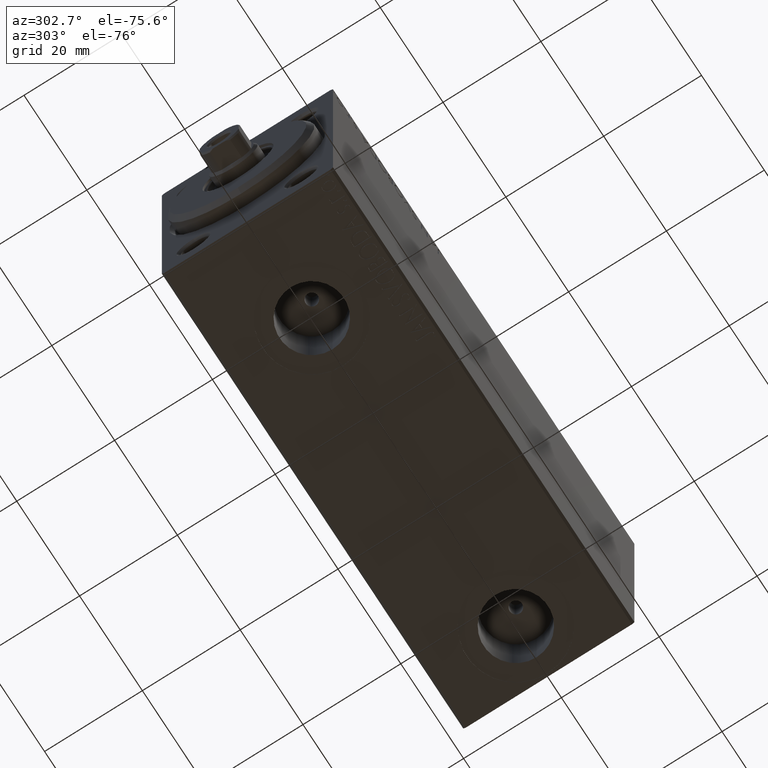
[diagram: clean part render]
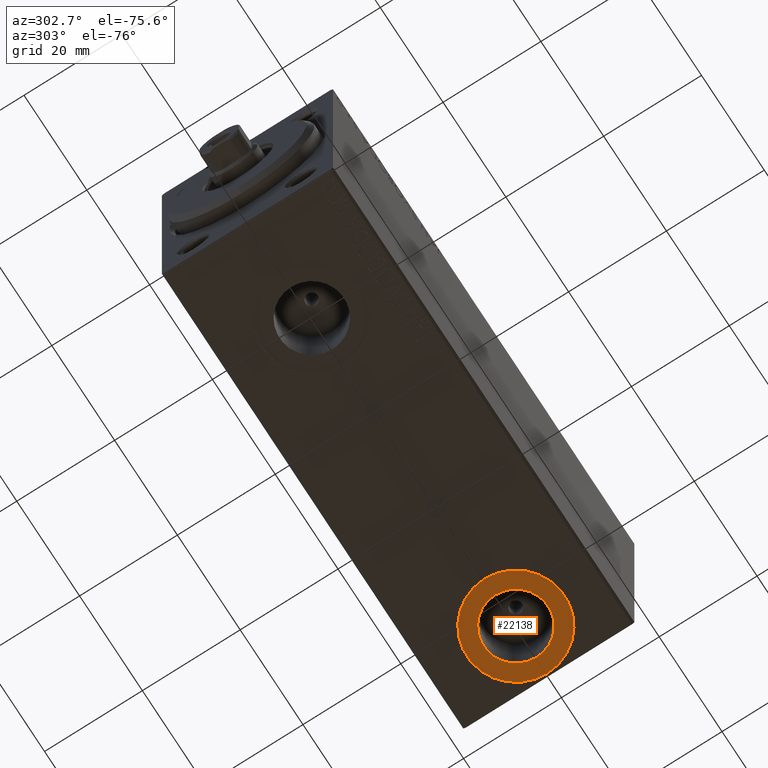
[diagram: same view with one face highlighted and labeled with its STEP entity id]
A machine part, auxiliary view. The second image highlights one B-rep face of the part: STEP entity #22138.
In plain terms, the highlighted planar face has unit normal (0, 0, -1).
Its self-contained STEP definition (entity closure, byte-faithful):
#314 = EDGE_CURVE ( 'NONE', #8941, #16981, #14906, .T. ) ;
#1851 = CARTESIAN_POINT ( 'NONE',  ( 92.08000000000002672, -1.232851729569972347E-14, -27.40000000000000924 ) ) ;
#1897 = DIRECTION ( 'NONE',  ( 0.000000000000000000, 0.000000000000000000, -1.000000000000000000 ) ) ;
#2788 = ORIENTED_EDGE ( 'NONE', *, *, #3177, .F. ) ;
#3000 = PLANE ( 'NONE',  #44772 ) ;
#3151 = AXIS2_PLACEMENT_3D ( 'NONE', #41421, #26704, #17018 ) ;
#3177 = EDGE_CURVE ( 'NONE', #16799, #27936, #15704, .T. ) ;
#3237 = FACE_BOUND ( 'NONE', #28204, .T. ) ;
#6356 = CARTESIAN_POINT ( 'NONE',  ( 75.50000000000002842, -1.313433488953868251E-14, -27.40000000000000924 ) ) ;
#7001 = CIRCLE ( 'NONE', #20208, 6.580000000000002736 ) ;
#8941 = VERTEX_POINT ( 'NONE', #17012 ) ;
#10587 = FACE_OUTER_BOUND ( 'NONE', #24576, .T. ) ;
#12698 = DIRECTION ( 'NONE',  ( -1.000000000000000000, 0.000000000000000000, 0.000000000000000000 ) ) ;
#13132 = ORIENTED_EDGE ( 'NONE', *, *, #314, .T. ) ;
#13813 = DIRECTION ( 'NONE',  ( 0.000000000000000000, 0.000000000000000000, -1.000000000000000000 ) ) ;
#14906 = CIRCLE ( 'NONE', #3151, 9.999999999999994671 ) ;
#15704 = CIRCLE ( 'NONE', #21609, 6.580000000000002736 ) ;
#16408 = ORIENTED_EDGE ( 'NONE', *, *, #40456, .T. ) ;
#16513 = CIRCLE ( 'NONE', #28270, 9.999999999999994671 ) ;
#16638 = DIRECTION ( 'NONE',  ( -1.000000000000000000, 0.000000000000000000, 0.000000000000000000 ) ) ;
#16799 = VERTEX_POINT ( 'NONE', #33079 ) ;
#16981 = VERTEX_POINT ( 'NONE', #6356 ) ;
#17012 = CARTESIAN_POINT ( 'NONE',  ( 95.50000000000001421, -1.190968809039132945E-14, -27.40000000000000924 ) ) ;
#17018 = DIRECTION ( 'NONE',  ( -1.000000000000000000, 0.000000000000000000, 0.000000000000000000 ) ) ;
#19853 = CARTESIAN_POINT ( 'NONE',  ( 85.50000000000001421, -1.313433488953868251E-14, -27.40000000000000924 ) ) ;
#20208 = AXIS2_PLACEMENT_3D ( 'NONE', #32781, #35781, #39454 ) ;
#21609 = AXIS2_PLACEMENT_3D ( 'NONE', #38497, #41268, #16638 ) ;
#22138 = ADVANCED_FACE ( 'NONE', ( #3237, #10587 ), #3000, .T. ) ;
#24576 = EDGE_LOOP ( 'NONE', ( #16408, #13132 ) ) ;
#24651 = DIRECTION ( 'NONE',  ( -1.000000000000000000, 0.000000000000000000, -0.000000000000000000 ) ) ;
#26704 = DIRECTION ( 'NONE',  ( 0.000000000000000000, 0.000000000000000000, -1.000000000000000000 ) ) ;
#27936 = VERTEX_POINT ( 'NONE', #1851 ) ;
#28204 = EDGE_LOOP ( 'NONE', ( #2788, #43324 ) ) ;
#28270 = AXIS2_PLACEMENT_3D ( 'NONE', #19853, #1897, #12698 ) ;
#32781 = CARTESIAN_POINT ( 'NONE',  ( 85.50000000000001421, -1.313433488953868251E-14, -27.40000000000000924 ) ) ;
#33079 = CARTESIAN_POINT ( 'NONE',  ( 78.92000000000001592, -1.313433488953868251E-14, -27.40000000000000924 ) ) ;
#35009 = CARTESIAN_POINT ( 'NONE',  ( 85.50000000000001421, -1.313433488953868251E-14, -27.40000000000000924 ) ) ;
#35781 = DIRECTION ( 'NONE',  ( 0.000000000000000000, 0.000000000000000000, -1.000000000000000000 ) ) ;
#38497 = CARTESIAN_POINT ( 'NONE',  ( 85.50000000000001421, -1.313433488953868251E-14, -27.40000000000000924 ) ) ;
#39454 = DIRECTION ( 'NONE',  ( -1.000000000000000000, 0.000000000000000000, 0.000000000000000000 ) ) ;
#40456 = EDGE_CURVE ( 'NONE', #16981, #8941, #16513, .T. ) ;
#41268 = DIRECTION ( 'NONE',  ( 0.000000000000000000, 0.000000000000000000, -1.000000000000000000 ) ) ;
#41421 = CARTESIAN_POINT ( 'NONE',  ( 85.50000000000001421, -1.313433488953868251E-14, -27.40000000000000924 ) ) ;
#42610 = EDGE_CURVE ( 'NONE', #27936, #16799, #7001, .T. ) ;
#43324 = ORIENTED_EDGE ( 'NONE', *, *, #42610, .F. ) ;
#44772 = AXIS2_PLACEMENT_3D ( 'NONE', #35009, #13813, #24651 ) ;